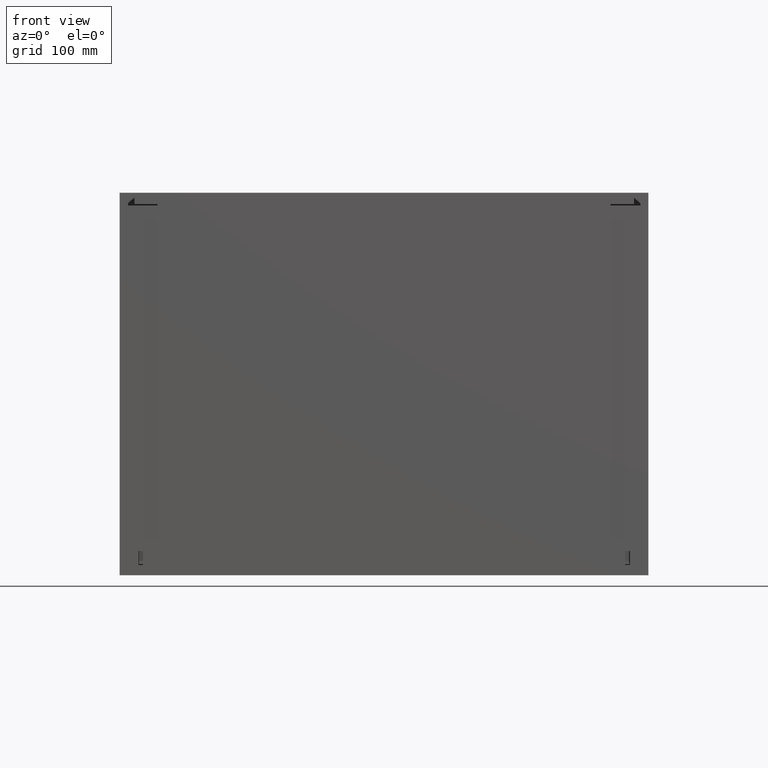
[diagram: clean part render]
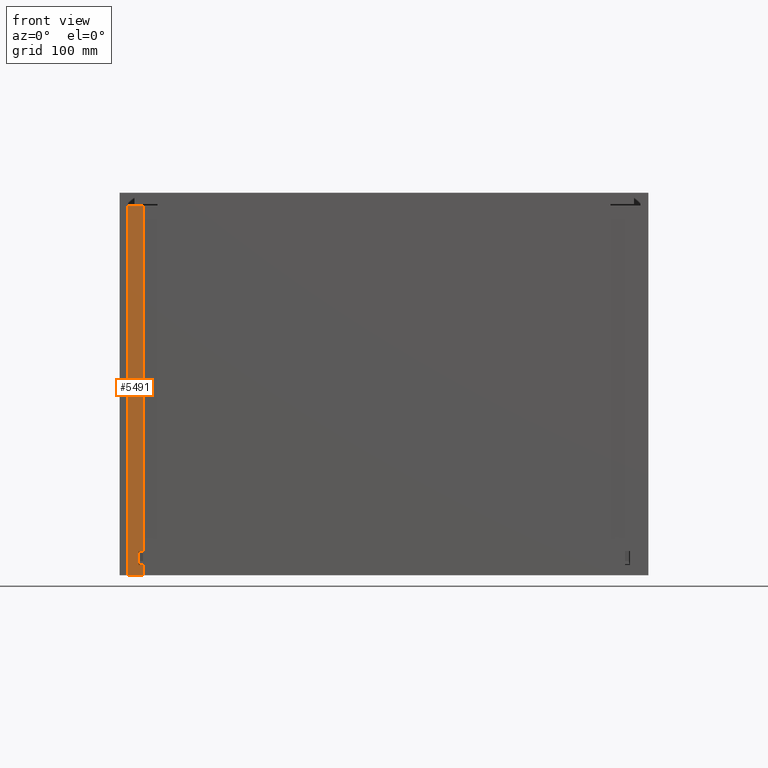
[diagram: same view with one face highlighted and labeled with its STEP entity id]
A machine part, front view. The second image highlights one B-rep face of the part: STEP entity #5491.
In plain terms, the highlighted planar face has unit normal (-0, -1, -0).
Its self-contained STEP definition (entity closure, byte-faithful):
#2 = EDGE_CURVE ( 'NONE', #7844, #905, #9534, .T. ) ;
#296 = LINE ( 'NONE', #4738, #7258 ) ;
#472 = CARTESIAN_POINT ( 'NONE',  ( 3.469446951953614189E-15, 0.0000000000000000000, 2.775557561562891351E-14 ) ) ;
#562 = VECTOR ( 'NONE', #1759, 1000.000000000000000 ) ;
#584 = VERTEX_POINT ( 'NONE', #10890 ) ;
#628 = DIRECTION ( 'NONE',  ( 1.000000000000000000, 3.081487911019578049E-33, -1.218643241873707230E-16 ) ) ;
#905 = VERTEX_POINT ( 'NONE', #3764 ) ;
#1190 = EDGE_CURVE ( 'NONE', #905, #14187, #4637, .T. ) ;
#1487 = DIRECTION ( 'NONE',  ( -1.225148454908619764E-16, 3.171164024055107487E-32, -1.000000000000000000 ) ) ;
#1533 = EDGE_CURVE ( 'NONE', #584, #2603, #7285, .T. ) ;
#1563 = EDGE_CURVE ( 'NONE', #14187, #2603, #5113, .T. ) ;
#1759 = DIRECTION ( 'NONE',  ( 1.000000000000000000, 3.081487911019578049E-33, -1.218643241873707230E-16 ) ) ;
#2603 = VERTEX_POINT ( 'NONE', #11273 ) ;
#2898 = EDGE_CURVE ( 'NONE', #584, #8263, #296, .T. ) ;
#2933 = DIRECTION ( 'NONE',  ( -1.225148454908619764E-16, 3.171164024055107487E-32, -1.000000000000000000 ) ) ;
#3424 = VECTOR ( 'NONE', #628, 1000.000000000000000 ) ;
#3643 = EDGE_CURVE ( 'NONE', #9962, #7844, #5381, .T. ) ;
#3764 = CARTESIAN_POINT ( 'NONE',  ( 10.00000000000005329, 0.0000000000000000000, -15.99999999999995914 ) ) ;
#4008 = DIRECTION ( 'NONE',  ( 1.225148454908619764E-16, -3.171164024055107487E-32, 1.000000000000000000 ) ) ;
#4154 = VERTEX_POINT ( 'NONE', #7226 ) ;
#4386 = ORIENTED_EDGE ( 'NONE', *, *, #1190, .F. ) ;
#4421 = CARTESIAN_POINT ( 'NONE',  ( 29.00000000000005329, 0.0000000000000000000, -15.99999999999998579 ) ) ;
#4637 = LINE ( 'NONE', #9063, #9625 ) ;
#4678 = ORIENTED_EDGE ( 'NONE', *, *, #1533, .T. ) ;
#4713 = AXIS2_PLACEMENT_3D ( 'NONE', #472, #4918, #9346 ) ;
#4738 = CARTESIAN_POINT ( 'NONE',  ( 23.00000000000000000, 0.0000000000000000000, -440.4999999999999432 ) ) ;
#4918 = DIRECTION ( 'NONE',  ( -3.081487911019577365E-33, -1.000000000000000000, -2.836533696217825257E-32 ) ) ;
#5113 = LINE ( 'NONE', #12858, #11223 ) ;
#5114 = CARTESIAN_POINT ( 'NONE',  ( 23.00000000000000000, 0.0000000000000000000, -457.5000000000000568 ) ) ;
#5381 = LINE ( 'NONE', #9806, #6575 ) ;
#5491 = ADVANCED_FACE ( 'NONE', ( #6006 ), #10430, .T. ) ;
#5609 = ORIENTED_EDGE ( 'NONE', *, *, #2, .F. ) ;
#6006 = FACE_OUTER_BOUND ( 'NONE', #14019, .T. ) ;
#6153 = LINE ( 'NONE', #10582, #3424 ) ;
#6187 = ORIENTED_EDGE ( 'NONE', *, *, #3643, .F. ) ;
#6467 = ORIENTED_EDGE ( 'NONE', *, *, #14267, .F. ) ;
#6575 = VECTOR ( 'NONE', #14231, 1000.000000000000000 ) ;
#6953 = CARTESIAN_POINT ( 'NONE',  ( 9.999999999999998224, 0.0000000000000000000, -470.0000000000000000 ) ) ;
#7015 = LINE ( 'NONE', #11431, #12926 ) ;
#7226 = CARTESIAN_POINT ( 'NONE',  ( 28.99999999999999645, 0.0000000000000000000, -457.5000000000000000 ) ) ;
#7258 = VECTOR ( 'NONE', #9163, 1000.000000000000000 ) ;
#7285 = LINE ( 'NONE', #11700, #562 ) ;
#7437 = ORIENTED_EDGE ( 'NONE', *, *, #1563, .F. ) ;
#7844 = VERTEX_POINT ( 'NONE', #6953 ) ;
#8263 = VERTEX_POINT ( 'NONE', #5114 ) ;
#8338 = ORIENTED_EDGE ( 'NONE', *, *, #2898, .F. ) ;
#9063 = CARTESIAN_POINT ( 'NONE',  ( 29.00000000000005329, 0.0000000000000000000, -15.99999999999998579 ) ) ;
#9163 = DIRECTION ( 'NONE',  ( -2.168404344971008387E-19, 2.836533696217825257E-32, -1.000000000000000000 ) ) ;
#9346 = DIRECTION ( 'NONE',  ( -2.168404344971008387E-19, 2.836533696217825257E-32, -1.000000000000000000 ) ) ;
#9534 = LINE ( 'NONE', #13948, #11065 ) ;
#9625 = VECTOR ( 'NONE', #13470, 1000.000000000000000 ) ;
#9802 = ORIENTED_EDGE ( 'NONE', *, *, #13272, .F. ) ;
#9806 = CARTESIAN_POINT ( 'NONE',  ( 28.99999999999999645, 0.0000000000000000000, -470.0000000000000000 ) ) ;
#9962 = VERTEX_POINT ( 'NONE', #12973 ) ;
#10430 = PLANE ( 'NONE',  #4713 ) ;
#10582 = CARTESIAN_POINT ( 'NONE',  ( 23.00000000000000000, 0.0000000000000000000, -457.5000000000000568 ) ) ;
#10890 = CARTESIAN_POINT ( 'NONE',  ( 23.00000000000000000, 0.0000000000000000000, -440.4999999999999432 ) ) ;
#11065 = VECTOR ( 'NONE', #4008, 1000.000000000000000 ) ;
#11223 = VECTOR ( 'NONE', #2933, 1000.000000000000000 ) ;
#11273 = CARTESIAN_POINT ( 'NONE',  ( 29.00000000000000000, 0.0000000000000000000, -440.4999999999999432 ) ) ;
#11431 = CARTESIAN_POINT ( 'NONE',  ( 28.99999999999999645, 0.0000000000000000000, -470.0000000000000000 ) ) ;
#11700 = CARTESIAN_POINT ( 'NONE',  ( 23.00000000000000000, 0.0000000000000000000, -440.4999999999999432 ) ) ;
#12858 = CARTESIAN_POINT ( 'NONE',  ( 28.99999999999999645, 0.0000000000000000000, -470.0000000000000000 ) ) ;
#12926 = VECTOR ( 'NONE', #1487, 1000.000000000000000 ) ;
#12973 = CARTESIAN_POINT ( 'NONE',  ( 28.99999999999999645, 0.0000000000000000000, -470.0000000000000000 ) ) ;
#13272 = EDGE_CURVE ( 'NONE', #8263, #4154, #6153, .T. ) ;
#13470 = DIRECTION ( 'NONE',  ( 1.000000000000000000, 3.081487911019578049E-33, 7.306438440379816353E-16 ) ) ;
#13948 = CARTESIAN_POINT ( 'NONE',  ( 9.999999999999998224, 0.0000000000000000000, -470.0000000000000000 ) ) ;
#14019 = EDGE_LOOP ( 'NONE', ( #4678, #7437, #4386, #5609, #6187, #6467, #9802, #8338 ) ) ;
#14187 = VERTEX_POINT ( 'NONE', #4421 ) ;
#14231 = DIRECTION ( 'NONE',  ( -1.000000000000000000, -3.081487911019578049E-33, -2.168404344971009349E-19 ) ) ;
#14267 = EDGE_CURVE ( 'NONE', #4154, #9962, #7015, .T. ) ;